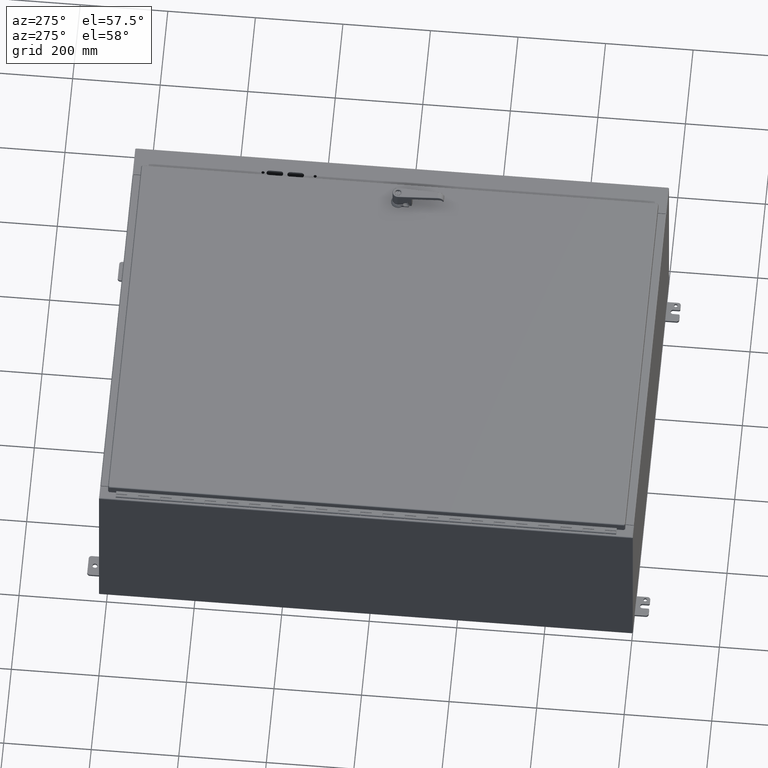
[diagram: clean part render]
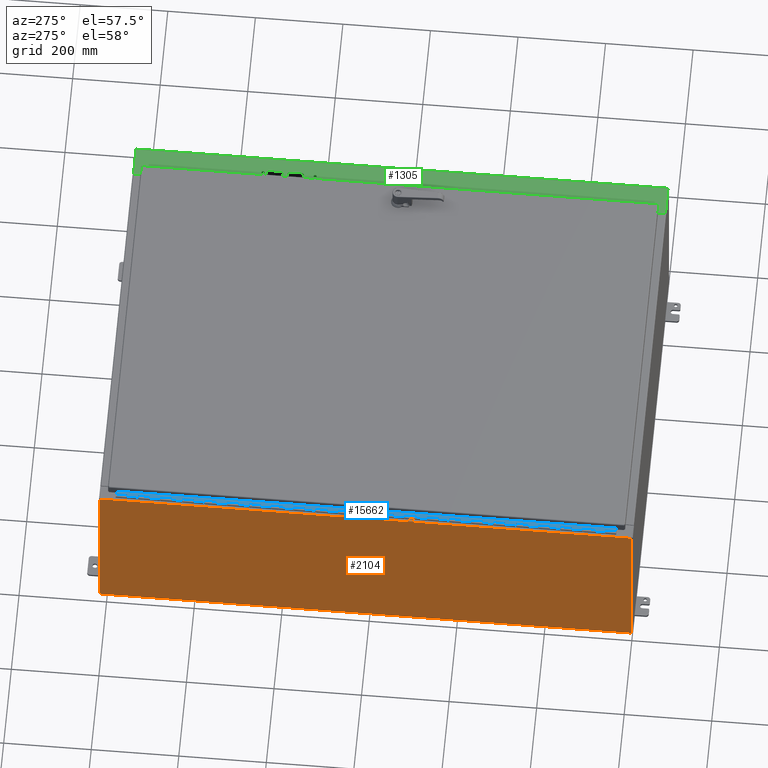
[diagram: same view with three faces highlighted in distinct colors, each labeled with its STEP entity id]
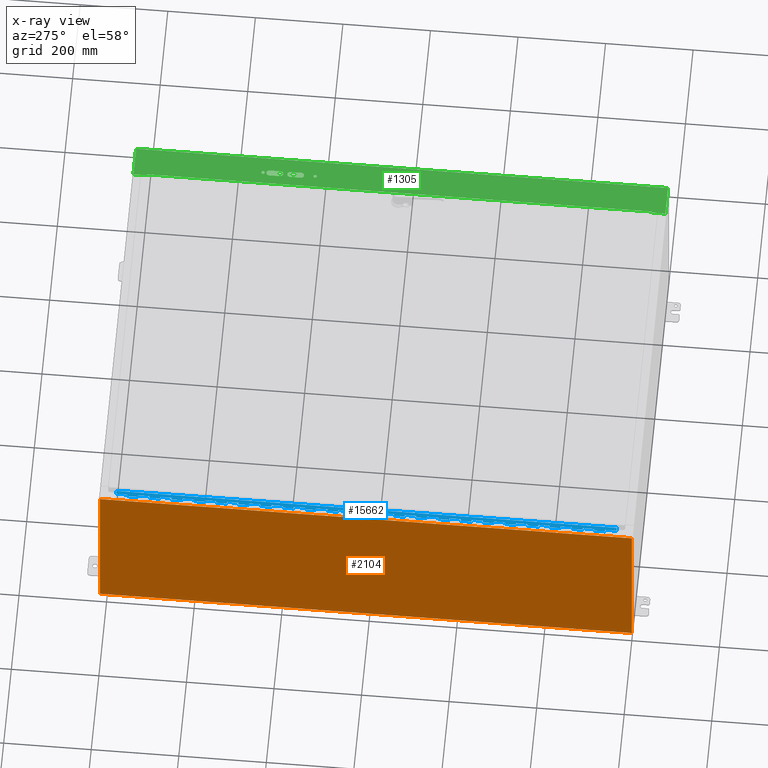
[diagram: x-ray of the same camera — body ghosted, the three highlighted faces saturated]
A machine part, auxiliary view with three faces highlighted in distinct colors.
The next image is the same camera in x-ray (body ghosted, the three faces saturated) — at least one of them is partly hidden behind the body in this view.
Their STEP definitions:

[orange] entity #2104 — the highlighted planar face has unit normal (1, 0, 0).
#1756=CARTESIAN_POINT('',(-1.463487E-014,47.852000000000004,0.10525));
#1757=VERTEX_POINT('',#1756);
#1765=CARTESIAN_POINT('',(-1.207477E-014,47.852000000000004,15.89475));
#1766=VERTEX_POINT('',#1765);
#1767=CARTESIAN_POINT('',(-1.463487E-014,47.852000000000004,0.10525));
#1768=DIRECTION('',(0.0,0.0,1.0));
#1769=VECTOR('',#1768,15.789499999999999);
#1770=LINE('',#1767,#1769);
#1771=EDGE_CURVE('',#1757,#1766,#1770,.T.);
#1930=CARTESIAN_POINT('',(2.567937E-015,1.682139E-014,15.894749999999982));
#1931=VERTEX_POINT('',#1930);
#1939=CARTESIAN_POINT('',(6.004373E-018,-3.068527E-017,0.10525));
#1940=VERTEX_POINT('',#1939);
#1941=CARTESIAN_POINT('',(3.511978E-015,-4.864825E-015,15.894749999999982));
#1942=DIRECTION('',(0.0,0.0,-1.0));
#1943=VECTOR('',#1942,15.789499999999983);
#1944=LINE('',#1941,#1943);
#1945=EDGE_CURVE('',#1931,#1940,#1944,.T.);
#2078=CARTESIAN_POINT('',(2.557311E-015,1.598721E-014,15.894749999999986));
#2079=DIRECTION('',(0.0,1.0,0.0));
#2080=VECTOR('',#2079,47.85199999999999);
#2081=LINE('',#2078,#2080);
#2082=EDGE_CURVE('',#1931,#1766,#2081,.T.);
#2088=CARTESIAN_POINT('',(-6.039665E-015,23.925999999999998,8.002508743193616));
#2089=DIRECTION('',(1.0,0.0,0.0));
#2090=DIRECTION('',(0.0,0.0,-1.0));
#2091=AXIS2_PLACEMENT_3D('',#2088,#2089,#2090);
#2092=PLANE('',#2091);
#2093=ORIENTED_EDGE('',*,*,#2082,.T.);
#2094=ORIENTED_EDGE('',*,*,#1771,.F.);
#2095=CARTESIAN_POINT('',(-1.463706E-014,47.852000000000004,0.105249999999999));
#2096=DIRECTION('',(0.0,-1.0,0.0));
#2097=VECTOR('',#2096,47.852000000000004);
#2098=LINE('',#2095,#2097);
#2099=EDGE_CURVE('',#1757,#1940,#2098,.T.);
#2100=ORIENTED_EDGE('',*,*,#2099,.T.);
#2101=ORIENTED_EDGE('',*,*,#1945,.F.);
#2102=EDGE_LOOP('',(#2093,#2094,#2100,#2101));
#2103=FACE_OUTER_BOUND('',#2102,.T.);
#2104=ADVANCED_FACE('',(#2103),#2092,.F.);

[blue] entity #15662 — the highlighted planar face has unit normal (0.0872, -0, 0.9962).
#11705=CARTESIAN_POINT('',(0.0,-0.125,0.999999999999996));
#11706=VERTEX_POINT('',#11705);
#11716=CARTESIAN_POINT('',(-0.18,-0.125,0.999999999999996));
#11717=VERTEX_POINT('',#11716);
#11718=CARTESIAN_POINT('',(-0.18,-0.125,0.999999999999991));
#11719=DIRECTION('',(1.0,0.0,0.0));
#11720=VECTOR('',#11719,0.18);
#11721=LINE('',#11718,#11720);
#11722=EDGE_CURVE('',#11717,#11706,#11721,.T.);
#11782=CARTESIAN_POINT('',(-0.18,-0.125,0.0));
#11783=VERTEX_POINT('',#11782);
#11797=CARTESIAN_POINT('',(-0.18,-0.125,0.0));
#11798=DIRECTION('',(0.0,0.0,1.0));
#11799=VECTOR('',#11798,0.999999999999996);
#11800=LINE('',#11797,#11799);
#11801=EDGE_CURVE('',#11783,#11717,#11800,.T.);
#11811=CARTESIAN_POINT('',(0.0,-0.125,2.999999999999996));
#11812=VERTEX_POINT('',#11811);
#11822=CARTESIAN_POINT('',(-0.18,-0.125,2.999999999999996));
#11823=VERTEX_POINT('',#11822);
#11824=CARTESIAN_POINT('',(-0.18,-0.125,2.99999999999999));
#11825=DIRECTION('',(1.0,0.0,0.0));
#11826=VECTOR('',#11825,0.18);
#11827=LINE('',#11824,#11826);
#11828=EDGE_CURVE('',#11823,#11812,#11827,.T.);
#11895=CARTESIAN_POINT('',(-0.18,-0.125,1.979999999999989));
#11896=VERTEX_POINT('',#11895);
#11897=CARTESIAN_POINT('',(-0.18,-0.125,1.979999999999989));
#11898=DIRECTION('',(0.0,0.0,1.0));
#11899=VECTOR('',#11898,1.020000000000006);
#11900=LINE('',#11897,#11899);
#11901=EDGE_CURVE('',#11896,#11823,#11900,.T.);
#11919=CARTESIAN_POINT('',(0.0,-0.125,1.979999999999995));
#11920=VERTEX_POINT('',#11919);
#11969=CARTESIAN_POINT('',(0.0,-0.125,1.979999999999989));
#11970=DIRECTION('',(-1.0,0.0,0.0));
#11971=VECTOR('',#11970,0.18);
#11972=LINE('',#11969,#11971);
#11973=EDGE_CURVE('',#11920,#11896,#11972,.T.);
#11983=CARTESIAN_POINT('',(0.0,-0.125,5.000000000000001));
#11984=VERTEX_POINT('',#11983);
#11994=CARTESIAN_POINT('',(-0.18,-0.125,5.000000000000001));
#11995=VERTEX_POINT('',#11994);
#11996=CARTESIAN_POINT('',(-0.18,-0.125,4.999999999999995));
#11997=DIRECTION('',(1.0,0.0,0.0));
#11998=VECTOR('',#11997,0.18);
#11999=LINE('',#11996,#11998);
#12000=EDGE_CURVE('',#11995,#11984,#11999,.T.);
#12067=CARTESIAN_POINT('',(-0.18,-0.125,3.979999999999995));
#12068=VERTEX_POINT('',#12067);
#12069=CARTESIAN_POINT('',(-0.18,-0.125,3.979999999999994));
#12070=DIRECTION('',(0.0,0.0,1.0));
#12071=VECTOR('',#12070,1.020000000000007);
#12072=LINE('',#12069,#12071);
#12073=EDGE_CURVE('',#12068,#11995,#12072,.T.);
#12091=CARTESIAN_POINT('',(0.0,-0.125,3.98));
#12092=VERTEX_POINT('',#12091);
#12141=CARTESIAN_POINT('',(0.0,-0.125,3.979999999999995));
#12142=DIRECTION('',(-1.0,0.0,0.0));
#12143=VECTOR('',#12142,0.18);
#12144=LINE('',#12141,#12143);
#12145=EDGE_CURVE('',#12092,#12068,#12144,.T.);
#12155=CARTESIAN_POINT('',(0.0,-0.125,7.000000000000001));
#12156=VERTEX_POINT('',#12155);
#12166=CARTESIAN_POINT('',(-0.18,-0.125,7.000000000000001));
#12167=VERTEX_POINT('',#12166);
#12168=CARTESIAN_POINT('',(-0.18,-0.125,6.999999999999996));
#12169=DIRECTION('',(1.0,0.0,0.0));
#12170=VECTOR('',#12169,0.18);
#12171=LINE('',#12168,#12170);
#12172=EDGE_CURVE('',#12167,#12156,#12171,.T.);
#12239=CARTESIAN_POINT('',(-0.18,-0.125,5.979999999999994));
#12240=VERTEX_POINT('',#12239);
#12241=CARTESIAN_POINT('',(-0.18,-0.125,5.979999999999993));
#12242=DIRECTION('',(0.0,0.0,1.0));
#12243=VECTOR('',#12242,1.020000000000008);
#12244=LINE('',#12241,#12243);
#12245=EDGE_CURVE('',#12240,#12167,#12244,.T.);
#12263=CARTESIAN_POINT('',(0.0,-0.125,5.98));
#12264=VERTEX_POINT('',#12263);
#12313=CARTESIAN_POINT('',(0.0,-0.125,5.979999999999994));
#12314=DIRECTION('',(-1.0,0.0,0.0));
#12315=VECTOR('',#12314,0.18);
#12316=LINE('',#12313,#12315);
#12317=EDGE_CURVE('',#12264,#12240,#12316,.T.);
#12327=CARTESIAN_POINT('',(0.0,-0.125,9.0));
#12328=VERTEX_POINT('',#12327);
#12338=CARTESIAN_POINT('',(-0.18,-0.125,9.0));
#12339=VERTEX_POINT('',#12338);
#12340=CARTESIAN_POINT('',(-0.18,-0.125,8.999999999999995));
#12341=DIRECTION('',(1.0,0.0,0.0));
#12342=VECTOR('',#12341,0.18);
#12343=LINE('',#12340,#12342);
#12344=EDGE_CURVE('',#12339,#12328,#12343,.T.);
#12411=CARTESIAN_POINT('',(-0.18,-0.125,7.979999999999994));
#12412=VERTEX_POINT('',#12411);
#12413=CARTESIAN_POINT('',(-0.18,-0.125,7.979999999999993));
#12414=DIRECTION('',(0.0,0.0,1.0));
#12415=VECTOR('',#12414,1.020000000000007);
#12416=LINE('',#12413,#12415);
#12417=EDGE_CURVE('',#12412,#12339,#12416,.T.);
#12435=CARTESIAN_POINT('',(0.0,-0.125,7.98));
#12436=VERTEX_POINT('',#12435);
#12485=CARTESIAN_POINT('',(0.0,-0.125,7.979999999999994));
#12486=DIRECTION('',(-1.0,0.0,0.0));
#12487=VECTOR('',#12486,0.18);
#12488=LINE('',#12485,#12487);
#12489=EDGE_CURVE('',#12436,#12412,#12488,.T.);
#12499=CARTESIAN_POINT('',(0.0,-0.125,10.999999999999998));
#12500=VERTEX_POINT('',#12499);
#12510=CARTESIAN_POINT('',(-0.18,-0.125,11.0));
#12511=VERTEX_POINT('',#12510);
#12512=CARTESIAN_POINT('',(-0.18,-0.125,10.999999999999995));
#12513=DIRECTION('',(1.0,0.0,0.0));
#12514=VECTOR('',#12513,0.18);
#12515=LINE('',#12512,#12514);
#12516=EDGE_CURVE('',#12511,#12500,#12515,.T.);
#12583=CARTESIAN_POINT('',(-0.18,-0.125,9.979999999999993));
#12584=VERTEX_POINT('',#12583);
#12585=CARTESIAN_POINT('',(-0.18,-0.125,9.979999999999993));
#12586=DIRECTION('',(0.0,0.0,1.0));
#12587=VECTOR('',#12586,1.020000000000007);
#12588=LINE('',#12585,#12587);
#12589=EDGE_CURVE('',#12584,#12511,#12588,.T.);
#12607=CARTESIAN_POINT('',(0.0,-0.125,9.979999999999999));
#12608=VERTEX_POINT('',#12607);
#12657=CARTESIAN_POINT('',(0.0,-0.125,9.979999999999993));
#12658=DIRECTION('',(-1.0,0.0,0.0));
#12659=VECTOR('',#12658,0.18);
#12660=LINE('',#12657,#12659);
#12661=EDGE_CURVE('',#12608,#12584,#12660,.T.);
#12671=CARTESIAN_POINT('',(0.0,-0.125,13.0));
#12672=VERTEX_POINT('',#12671);
#12682=CARTESIAN_POINT('',(-0.18,-0.125,13.0));
#12683=VERTEX_POINT('',#12682);
#12684=CARTESIAN_POINT('',(-0.18,-0.125,12.999999999999993));
#12685=DIRECTION('',(1.0,0.0,0.0));
#12686=VECTOR('',#12685,0.18);
#12687=LINE('',#12684,#12686);
#12688=EDGE_CURVE('',#12683,#12672,#12687,.T.);
#12755=CARTESIAN_POINT('',(-0.18,-0.125,11.979999999999993));
#12756=VERTEX_POINT('',#12755);
#12757=CARTESIAN_POINT('',(-0.18,-0.125,11.979999999999993));
#12758=DIRECTION('',(0.0,0.0,1.0));
#12759=VECTOR('',#12758,1.020000000000007);
#12760=LINE('',#12757,#12759);
#12761=EDGE_CURVE('',#12756,#12683,#12760,.T.);
#12779=CARTESIAN_POINT('',(0.0,-0.125,11.979999999999999));
#12780=VERTEX_POINT('',#12779);
#12829=CARTESIAN_POINT('',(0.0,-0.125,11.979999999999993));
#12830=DIRECTION('',(-1.0,0.0,0.0));
#12831=VECTOR('',#12830,0.18);
#12832=LINE('',#12829,#12831);
#12833=EDGE_CURVE('',#12780,#12756,#12832,.T.);
#12843=CARTESIAN_POINT('',(0.0,-0.125,14.999999999999998));
#12844=VERTEX_POINT('',#12843);
#12854=CARTESIAN_POINT('',(-0.18,-0.125,14.999999999999998));
#12855=VERTEX_POINT('',#12854);
#12856=CARTESIAN_POINT('',(-0.18,-0.125,14.999999999999993));
#12857=DIRECTION('',(1.0,0.0,0.0));
#12858=VECTOR('',#12857,0.18);
#12859=LINE('',#12856,#12858);
#12860=EDGE_CURVE('',#12855,#12844,#12859,.T.);
#12927=CARTESIAN_POINT('',(-0.18,-0.125,13.979999999999992));
#12928=VERTEX_POINT('',#12927);
#12929=CARTESIAN_POINT('',(-0.18,-0.125,13.979999999999993));
#12930=DIRECTION('',(0.0,0.0,1.0));
#12931=VECTOR('',#12930,1.020000000000005);
#12932=LINE('',#12929,#12931);
#12933=EDGE_CURVE('',#12928,#12855,#12932,.T.);
#12951=CARTESIAN_POINT('',(0.0,-0.125,13.979999999999999));
#12952=VERTEX_POINT('',#12951);
#13001=CARTESIAN_POINT('',(0.0,-0.125,13.979999999999992));
#13002=DIRECTION('',(-1.0,0.0,0.0));
#13003=VECTOR('',#13002,0.18);
#13004=LINE('',#13001,#13003);
#13005=EDGE_CURVE('',#12952,#12928,#13004,.T.);
#13015=CARTESIAN_POINT('',(0.0,-0.125,16.999999999999996));
#13016=VERTEX_POINT('',#13015);
#13026=CARTESIAN_POINT('',(-0.18,-0.125,16.999999999999996));
#13027=VERTEX_POINT('',#13026);
#13028=CARTESIAN_POINT('',(-0.18,-0.125,16.999999999999993));
#13029=DIRECTION('',(1.0,0.0,0.0));
#13030=VECTOR('',#13029,0.18);
#13031=LINE('',#13028,#13030);
#13032=EDGE_CURVE('',#13027,#13016,#13031,.T.);
#13099=CARTESIAN_POINT('',(-0.18,-0.125,15.979999999999992));
#13100=VERTEX_POINT('',#13099);
#13101=CARTESIAN_POINT('',(-0.18,-0.125,15.97999999999999));
#13102=DIRECTION('',(0.0,0.0,1.0));
#13103=VECTOR('',#13102,1.020000000000007);
#13104=LINE('',#13101,#13103);
#13105=EDGE_CURVE('',#13100,#13027,#13104,.T.);
#13123=CARTESIAN_POINT('',(0.0,-0.125,15.979999999999997));
#13124=VERTEX_POINT('',#13123);
#13173=CARTESIAN_POINT('',(0.0,-0.125,15.979999999999992));
#13174=DIRECTION('',(-1.0,0.0,0.0));
#13175=VECTOR('',#13174,0.18);
#13176=LINE('',#13173,#13175);
#13177=EDGE_CURVE('',#13124,#13100,#13176,.T.);
#13187=CARTESIAN_POINT('',(0.0,-0.125,18.999999999999996));
#13188=VERTEX_POINT('',#13187);
#13198=CARTESIAN_POINT('',(-0.18,-0.125,18.999999999999996));
#13199=VERTEX_POINT('',#13198);
#13200=CARTESIAN_POINT('',(-0.18,-0.125,18.999999999999993));
#13201=DIRECTION('',(1.0,0.0,0.0));
#13202=VECTOR('',#13201,0.18);
#13203=LINE('',#13200,#13202);
#13204=EDGE_CURVE('',#13199,#13188,#13203,.T.);
#13271=CARTESIAN_POINT('',(-0.18,-0.125,17.97999999999999));
#13272=VERTEX_POINT('',#13271);
#13273=CARTESIAN_POINT('',(-0.18,-0.125,17.97999999999999));
#13274=DIRECTION('',(0.0,0.0,1.0));
#13275=VECTOR('',#13274,1.020000000000007);
#13276=LINE('',#13273,#13275);
#13277=EDGE_CURVE('',#13272,#13199,#13276,.T.);
#13295=CARTESIAN_POINT('',(0.0,-0.125,17.98));
#13296=VERTEX_POINT('',#13295);
#13345=CARTESIAN_POINT('',(0.0,-0.125,17.97999999999999));
#13346=DIRECTION('',(-1.0,0.0,0.0));
#13347=VECTOR('',#13346,0.18);
#13348=LINE('',#13345,#13347);
#13349=EDGE_CURVE('',#13296,#13272,#13348,.T.);
#13359=CARTESIAN_POINT('',(0.0,-0.125,21.000000000000004));
#13360=VERTEX_POINT('',#13359);
#13370=CARTESIAN_POINT('',(-0.18,-0.125,21.0));
#13371=VERTEX_POINT('',#13370);
#13372=CARTESIAN_POINT('',(-0.18,-0.125,20.999999999999993));
#13373=DIRECTION('',(1.0,0.0,0.0));
#13374=VECTOR('',#13373,0.18);
#13375=LINE('',#13372,#13374);
#13376=EDGE_CURVE('',#13371,#13360,#13375,.T.);
#13443=CARTESIAN_POINT('',(-0.18,-0.125,19.979999999999993));
#13444=VERTEX_POINT('',#13443);
#13445=CARTESIAN_POINT('',(-0.18,-0.125,19.979999999999993));
#13446=DIRECTION('',(0.0,0.0,1.0));
#13447=VECTOR('',#13446,1.020000000000007);
#13448=LINE('',#13445,#13447);
#13449=EDGE_CURVE('',#13444,#13371,#13448,.T.);
#13467=CARTESIAN_POINT('',(0.0,-0.125,19.98));
#13468=VERTEX_POINT('',#13467);
#13517=CARTESIAN_POINT('',(0.0,-0.125,19.979999999999993));
#13518=DIRECTION('',(-1.0,0.0,0.0));
#13519=VECTOR('',#13518,0.18);
#13520=LINE('',#13517,#13519);
#13521=EDGE_CURVE('',#13468,#13444,#13520,.T.);
#13531=CARTESIAN_POINT('',(0.0,-0.125,22.999999999999996));
#13532=VERTEX_POINT('',#13531);
#13542=CARTESIAN_POINT('',(-0.18,-0.125,23.0));
#13543=VERTEX_POINT('',#13542);
#13544=CARTESIAN_POINT('',(-0.18,-0.125,22.999999999999993));
#13545=DIRECTION('',(1.0,0.0,0.0));
#13546=VECTOR('',#13545,0.18);
#13547=LINE('',#13544,#13546);
#13548=EDGE_CURVE('',#13543,#13532,#13547,.T.);
#13615=CARTESIAN_POINT('',(-0.18,-0.125,21.979999999999993));
#13616=VERTEX_POINT('',#13615);
#13617=CARTESIAN_POINT('',(-0.18,-0.125,21.979999999999993));
#13618=DIRECTION('',(0.0,0.0,1.0));
#13619=VECTOR('',#13618,1.020000000000007);
#13620=LINE('',#13617,#13619);
#13621=EDGE_CURVE('',#13616,#13543,#13620,.T.);
#13639=CARTESIAN_POINT('',(0.0,-0.125,21.979999999999997));
#13640=VERTEX_POINT('',#13639);
#13689=CARTESIAN_POINT('',(-6.162976E-033,-0.125,21.979999999999993));
#13690=DIRECTION('',(-1.0,0.0,0.0));
#13691=VECTOR('',#13690,0.18);
#13692=LINE('',#13689,#13691);
#13693=EDGE_CURVE('',#13640,#13616,#13692,.T.);
#13703=CARTESIAN_POINT('',(0.0,-0.125,25.0));
#13704=VERTEX_POINT('',#13703);
#13714=CARTESIAN_POINT('',(-0.18,-0.125,25.0));
#13715=VERTEX_POINT('',#13714);
#13716=CARTESIAN_POINT('',(-0.18,-0.125,24.999999999999996));
#13717=DIRECTION('',(1.0,0.0,0.0));
#13718=VECTOR('',#13717,0.18);
#13719=LINE('',#13716,#13718);
#13720=EDGE_CURVE('',#13715,#13704,#13719,.T.);
#13787=CARTESIAN_POINT('',(-0.18,-0.125,23.979999999999997));
#13788=VERTEX_POINT('',#13787);
#13789=CARTESIAN_POINT('',(-0.18,-0.125,23.979999999999997));
#13790=DIRECTION('',(0.0,0.0,1.0));
#13791=VECTOR('',#13790,1.020000000000003);
#13792=LINE('',#13789,#13791);
#13793=EDGE_CURVE('',#13788,#13715,#13792,.T.);
#13811=CARTESIAN_POINT('',(0.0,-0.125,23.98));
#13812=VERTEX_POINT('',#13811);
#13861=CARTESIAN_POINT('',(-6.162976E-033,-0.125,23.979999999999997));
#13862=DIRECTION('',(-1.0,0.0,0.0));
#13863=VECTOR('',#13862,0.18);
#13864=LINE('',#13861,#13863);
#13865=EDGE_CURVE('',#13812,#13788,#13864,.T.);
#13875=CARTESIAN_POINT('',(0.0,-0.125,27.0));
#13876=VERTEX_POINT('',#13875);
#13886=CARTESIAN_POINT('',(-0.18,-0.125,27.0));
#13887=VERTEX_POINT('',#13886);
#13888=CARTESIAN_POINT('',(-0.18,-0.125,26.999999999999996));
#13889=DIRECTION('',(1.0,0.0,0.0));
#13890=VECTOR('',#13889,0.18);
#13891=LINE('',#13888,#13890);
#13892=EDGE_CURVE('',#13887,#13876,#13891,.T.);
#13959=CARTESIAN_POINT('',(-0.18,-0.125,25.979999999999993));
#13960=VERTEX_POINT('',#13959);
#13961=CARTESIAN_POINT('',(-0.18,-0.125,25.979999999999993));
#13962=DIRECTION('',(0.0,0.0,1.0));
#13963=VECTOR('',#13962,1.020000000000007);
#13964=LINE('',#13961,#13963);
#13965=EDGE_CURVE('',#13960,#13887,#13964,.T.);
#13983=CARTESIAN_POINT('',(0.0,-0.125,25.98));
#13984=VERTEX_POINT('',#13983);
#14033=CARTESIAN_POINT('',(-3.081488E-033,-0.125,25.979999999999993));
#14034=DIRECTION('',(-1.0,0.0,0.0));
#14035=VECTOR('',#14034,0.18);
#14036=LINE('',#14033,#14035);
#14037=EDGE_CURVE('',#13984,#13960,#14036,.T.);
#14047=CARTESIAN_POINT('',(0.0,-0.125,29.0));
#14048=VERTEX_POINT('',#14047);
#14058=CARTESIAN_POINT('',(-0.18,-0.125,29.0));
#14059=VERTEX_POINT('',#14058);
#14060=CARTESIAN_POINT('',(-0.18,-0.125,28.999999999999996));
#14061=DIRECTION('',(1.0,0.0,0.0));
#14062=VECTOR('',#14061,0.18);
#14063=LINE('',#14060,#14062);
#14064=EDGE_CURVE('',#14059,#14048,#14063,.T.);
#14131=CARTESIAN_POINT('',(-0.18,-0.125,27.979999999999993));
#14132=VERTEX_POINT('',#14131);
#14133=CARTESIAN_POINT('',(-0.18,-0.125,27.979999999999993));
#14134=DIRECTION('',(0.0,0.0,1.0));
#14135=VECTOR('',#14134,1.020000000000007);
#14136=LINE('',#14133,#14135);
#14137=EDGE_CURVE('',#14132,#14059,#14136,.T.);
#14155=CARTESIAN_POINT('',(0.0,-0.125,27.98));
#14156=VERTEX_POINT('',#14155);
#14205=CARTESIAN_POINT('',(-3.081488E-033,-0.125,27.979999999999993));
#14206=DIRECTION('',(-1.0,0.0,0.0));
#14207=VECTOR('',#14206,0.18);
#14208=LINE('',#14205,#14207);
#14209=EDGE_CURVE('',#14156,#14132,#14208,.T.);
#14219=CARTESIAN_POINT('',(0.0,-0.125,31.0));
#14220=VERTEX_POINT('',#14219);
#14230=CARTESIAN_POINT('',(-0.18,-0.125,31.0));
#14231=VERTEX_POINT('',#14230);
#14232=CARTESIAN_POINT('',(-0.18,-0.125,30.999999999999993));
#14233=DIRECTION('',(1.0,0.0,0.0));
#14234=VECTOR('',#14233,0.18);
#14235=LINE('',#14232,#14234);
#14236=EDGE_CURVE('',#14231,#14220,#14235,.T.);
#14303=CARTESIAN_POINT('',(-0.18,-0.125,29.979999999999993));
#14304=VERTEX_POINT('',#14303);
#14305=CARTESIAN_POINT('',(-0.18,-0.125,29.979999999999993));
#14306=DIRECTION('',(0.0,0.0,1.0));
#14307=VECTOR('',#14306,1.020000000000007);
#14308=LINE('',#14305,#14307);
#14309=EDGE_CURVE('',#14304,#14231,#14308,.T.);
#14327=CARTESIAN_POINT('',(0.0,-0.125,29.98));
#14328=VERTEX_POINT('',#14327);
#14377=CARTESIAN_POINT('',(-3.081488E-033,-0.125,29.979999999999993));
#14378=DIRECTION('',(-1.0,0.0,0.0));
#14379=VECTOR('',#14378,0.18);
#14380=LINE('',#14377,#14379);
#14381=EDGE_CURVE('',#14328,#14304,#14380,.T.);
#14391=CARTESIAN_POINT('',(0.0,-0.125,33.000000000000007));
#14392=VERTEX_POINT('',#14391);
#14402=CARTESIAN_POINT('',(-0.18,-0.125,33.000000000000007));
#14403=VERTEX_POINT('',#14402);
#14404=CARTESIAN_POINT('',(-0.18,-0.125,32.999999999999993));
#14405=DIRECTION('',(1.0,0.0,0.0));
#14406=VECTOR('',#14405,0.18);
#14407=LINE('',#14404,#14406);
#14408=EDGE_CURVE('',#14403,#14392,#14407,.T.);
#14475=CARTESIAN_POINT('',(-0.18,-0.125,31.979999999999993));
#14476=VERTEX_POINT('',#14475);
#14477=CARTESIAN_POINT('',(-0.18,-0.125,31.979999999999993));
#14478=DIRECTION('',(0.0,0.0,1.0));
#14479=VECTOR('',#14478,1.020000000000014);
#14480=LINE('',#14477,#14479);
#14481=EDGE_CURVE('',#14476,#14403,#14480,.T.);
#14499=CARTESIAN_POINT('',(0.0,-0.125,31.980000000000004));
#14500=VERTEX_POINT('',#14499);
#14549=CARTESIAN_POINT('',(-6.162976E-033,-0.125,31.979999999999993));
#14550=DIRECTION('',(-1.0,0.0,0.0));
#14551=VECTOR('',#14550,0.18);
#14552=LINE('',#14549,#14551);
#14553=EDGE_CURVE('',#14500,#14476,#14552,.T.);
#14563=CARTESIAN_POINT('',(0.0,-0.125,35.0));
#14564=VERTEX_POINT('',#14563);
#14574=CARTESIAN_POINT('',(-0.18,-0.125,35.0));
#14575=VERTEX_POINT('',#14574);
#14576=CARTESIAN_POINT('',(-0.18,-0.125,35.0));
#14577=DIRECTION('',(1.0,0.0,0.0));
#14578=VECTOR('',#14577,0.18);
#14579=LINE('',#14576,#14578);
#14580=EDGE_CURVE('',#14575,#14564,#14579,.T.);
#14647=CARTESIAN_POINT('',(-0.18,-0.125,33.979999999999997));
#14648=VERTEX_POINT('',#14647);
#14649=CARTESIAN_POINT('',(-0.18,-0.125,33.979999999999997));
#14650=DIRECTION('',(0.0,0.0,1.0));
#14651=VECTOR('',#14650,1.020000000000003);
#14652=LINE('',#14649,#14651);
#14653=EDGE_CURVE('',#14648,#14575,#14652,.T.);
#14671=CARTESIAN_POINT('',(0.0,-0.125,33.979999999999997));
#14672=VERTEX_POINT('',#14671);
#14721=CARTESIAN_POINT('',(-6.162976E-033,-0.125,33.979999999999997));
#14722=DIRECTION('',(-1.0,0.0,0.0));
#14723=VECTOR('',#14722,0.18);
#14724=LINE('',#14721,#14723);
#14725=EDGE_CURVE('',#14672,#14648,#14724,.T.);
#14735=CARTESIAN_POINT('',(0.0,-0.125,37.000000000000007));
#14736=VERTEX_POINT('',#14735);
#14746=CARTESIAN_POINT('',(-0.18,-0.125,37.000000000000007));
#14747=VERTEX_POINT('',#14746);
#14748=CARTESIAN_POINT('',(-0.18,-0.125,37.0));
#14749=DIRECTION('',(1.0,0.0,0.0));
#14750=VECTOR('',#14749,0.18);
#14751=LINE('',#14748,#14750);
#14752=EDGE_CURVE('',#14747,#14736,#14751,.T.);
#14819=CARTESIAN_POINT('',(-0.18,-0.125,35.979999999999997));
#14820=VERTEX_POINT('',#14819);
#14821=CARTESIAN_POINT('',(-0.18,-0.125,35.980000000000004));
#14822=DIRECTION('',(0.0,0.0,1.0));
#14823=VECTOR('',#14822,1.020000000000003);
#14824=LINE('',#14821,#14823);
#14825=EDGE_CURVE('',#14820,#14747,#14824,.T.);
#14843=CARTESIAN_POINT('',(0.0,-0.125,35.980000000000004));
#14844=VERTEX_POINT('',#14843);
#14893=CARTESIAN_POINT('',(-6.162976E-033,-0.125,35.979999999999997));
#14894=DIRECTION('',(-1.0,0.0,0.0));
#14895=VECTOR('',#14894,0.18);
#14896=LINE('',#14893,#14895);
#14897=EDGE_CURVE('',#14844,#14820,#14896,.T.);
#14907=CARTESIAN_POINT('',(0.0,-0.125,39.0));
#14908=VERTEX_POINT('',#14907);
#14918=CARTESIAN_POINT('',(-0.18,-0.125,39.0));
#14919=VERTEX_POINT('',#14918);
#14920=CARTESIAN_POINT('',(-0.18,-0.125,39.0));
#14921=DIRECTION('',(1.0,0.0,0.0));
#14922=VECTOR('',#14921,0.18);
#14923=LINE('',#14920,#14922);
#14924=EDGE_CURVE('',#14919,#14908,#14923,.T.);
#14991=CARTESIAN_POINT('',(-0.18,-0.125,37.979999999999997));
#14992=VERTEX_POINT('',#14991);
#14993=CARTESIAN_POINT('',(-0.18,-0.125,37.979999999999997));
#14994=DIRECTION('',(0.0,0.0,1.0));
#14995=VECTOR('',#14994,1.020000000000003);
#14996=LINE('',#14993,#14995);
#14997=EDGE_CURVE('',#14992,#14919,#14996,.T.);
#15015=CARTESIAN_POINT('',(0.0,-0.125,37.980000000000004));
#15016=VERTEX_POINT('',#15015);
#15065=CARTESIAN_POINT('',(-6.162976E-033,-0.125,37.979999999999997));
#15066=DIRECTION('',(-1.0,0.0,0.0));
#15067=VECTOR('',#15066,0.18);
#15068=LINE('',#15065,#15067);
#15069=EDGE_CURVE('',#15016,#14992,#15068,.T.);
#15079=CARTESIAN_POINT('',(0.0,-0.125,41.0));
#15080=VERTEX_POINT('',#15079);
#15090=CARTESIAN_POINT('',(-0.18,-0.125,41.0));
#15091=VERTEX_POINT('',#15090);
#15092=CARTESIAN_POINT('',(-0.18,-0.125,41.0));
#15093=DIRECTION('',(1.0,0.0,0.0));
#15094=VECTOR('',#15093,0.18);
#15095=LINE('',#15092,#15094);
#15096=EDGE_CURVE('',#15091,#15080,#15095,.T.);
#15163=CARTESIAN_POINT('',(-0.18,-0.125,39.979999999999997));
#15164=VERTEX_POINT('',#15163);
#15165=CARTESIAN_POINT('',(-0.18,-0.125,39.97999999999999));
#15166=DIRECTION('',(0.0,0.0,1.0));
#15167=VECTOR('',#15166,1.02000000000001);
#15168=LINE('',#15165,#15167);
#15169=EDGE_CURVE('',#15164,#15091,#15168,.T.);
#15187=CARTESIAN_POINT('',(0.0,-0.125,39.980000000000004));
#15188=VERTEX_POINT('',#15187);
#15237=CARTESIAN_POINT('',(-3.081488E-033,-0.125,39.979999999999997));
#15238=DIRECTION('',(-1.0,0.0,0.0));
#15239=VECTOR('',#15238,0.18);
#15240=LINE('',#15237,#15239);
#15241=EDGE_CURVE('',#15188,#15164,#15240,.T.);
#15251=CARTESIAN_POINT('',(0.0,-0.125,43.0));
#15252=VERTEX_POINT('',#15251);
#15262=CARTESIAN_POINT('',(-0.18,-0.125,43.0));
#15263=VERTEX_POINT('',#15262);
#15264=CARTESIAN_POINT('',(-0.18,-0.125,42.999999999999993));
#15265=DIRECTION('',(1.0,0.0,0.0));
#15266=VECTOR('',#15265,0.18);
#15267=LINE('',#15264,#15266);
#15268=EDGE_CURVE('',#15263,#15252,#15267,.T.);
#15335=CARTESIAN_POINT('',(-0.18,-0.125,41.979999999999997));
#15336=VERTEX_POINT('',#15335);
#15337=CARTESIAN_POINT('',(-0.18,-0.125,41.97999999999999));
#15338=DIRECTION('',(0.0,0.0,1.0));
#15339=VECTOR('',#15338,1.02000000000001);
#15340=LINE('',#15337,#15339);
#15341=EDGE_CURVE('',#15336,#15263,#15340,.T.);
#15359=CARTESIAN_POINT('',(0.0,-0.125,41.980000000000004));
#15360=VERTEX_POINT('',#15359);
#15409=CARTESIAN_POINT('',(-6.162976E-033,-0.125,41.979999999999997));
#15410=DIRECTION('',(-1.0,0.0,0.0));
#15411=VECTOR('',#15410,0.18);
#15412=LINE('',#15409,#15411);
#15413=EDGE_CURVE('',#15360,#15336,#15412,.T.);
#15418=CARTESIAN_POINT('',(1.530808E-017,-0.125,0.0));
#15419=DIRECTION('',(0.0,-1.0,0.0));
#15420=DIRECTION('',(0.0,0.0,-1.0));
#15421=AXIS2_PLACEMENT_3D('',#15418,#15419,#15420);
#15422=PLANE('',#15421);
#15423=ORIENTED_EDGE('',*,*,#11801,.T.);
#15424=ORIENTED_EDGE('',*,*,#11722,.T.);
#15425=CARTESIAN_POINT('',(1.530808E-017,-0.125,0.999999999999996));
#15426=DIRECTION('',(0.0,0.0,1.0));
#15427=VECTOR('',#15426,0.979999999999999);
#15428=LINE('',#15425,#15427);
#15429=EDGE_CURVE('',#11706,#11920,#15428,.T.);
#15430=ORIENTED_EDGE('',*,*,#15429,.T.);
#15431=ORIENTED_EDGE('',*,*,#11973,.T.);
#15432=ORIENTED_EDGE('',*,*,#11901,.T.);
#15433=ORIENTED_EDGE('',*,*,#11828,.T.);
#15434=CARTESIAN_POINT('',(1.530808E-017,-0.125,2.999999999999996));
#15435=DIRECTION('',(0.0,0.0,1.0));
#15436=VECTOR('',#15435,0.980000000000004);
#15437=LINE('',#15434,#15436);
#15438=EDGE_CURVE('',#11812,#12092,#15437,.T.);
#15439=ORIENTED_EDGE('',*,*,#15438,.T.);
#15440=ORIENTED_EDGE('',*,*,#12145,.T.);
#15441=ORIENTED_EDGE('',*,*,#12073,.T.);
#15442=ORIENTED_EDGE('',*,*,#12000,.T.);
#15443=CARTESIAN_POINT('',(1.530808E-017,-0.125,5.000000000000001));
#15444=DIRECTION('',(0.0,0.0,1.0));
#15445=VECTOR('',#15444,0.979999999999999);
#15446=LINE('',#15443,#15445);
#15447=EDGE_CURVE('',#11984,#12264,#15446,.T.);
#15448=ORIENTED_EDGE('',*,*,#15447,.T.);
#15449=ORIENTED_EDGE('',*,*,#12317,.T.);
#15450=ORIENTED_EDGE('',*,*,#12245,.T.);
#15451=ORIENTED_EDGE('',*,*,#12172,.T.);
#15452=CARTESIAN_POINT('',(1.530808E-017,-0.125,7.000000000000001));
#15453=DIRECTION('',(0.0,0.0,1.0));
#15454=VECTOR('',#15453,0.979999999999999);
#15455=LINE('',#15452,#15454);
#15456=EDGE_CURVE('',#12156,#12436,#15455,.T.);
#15457=ORIENTED_EDGE('',*,*,#15456,.T.);
#15458=ORIENTED_EDGE('',*,*,#12489,.T.);
#15459=ORIENTED_EDGE('',*,*,#12417,.T.);
#15460=ORIENTED_EDGE('',*,*,#12344,.T.);
#15461=CARTESIAN_POINT('',(1.530808E-017,-0.125,9.0));
#15462=DIRECTION('',(0.0,0.0,1.0));
#15463=VECTOR('',#15462,0.979999999999999);
#15464=LINE('',#15461,#15463);
#15465=EDGE_CURVE('',#12328,#12608,#15464,.T.);
#15466=ORIENTED_EDGE('',*,*,#15465,.T.);
#15467=ORIENTED_EDGE('',*,*,#12661,.T.);
#15468=ORIENTED_EDGE('',*,*,#12589,.T.);
#15469=ORIENTED_EDGE('',*,*,#12516,.T.);
#15470=CARTESIAN_POINT('',(1.530808E-017,-0.125,10.999999999999998));
#15471=DIRECTION('',(0.0,0.0,1.0));
#15472=VECTOR('',#15471,0.98);
#15473=LINE('',#15470,#15472);
#15474=EDGE_CURVE('',#12500,#12780,#15473,.T.);
#15475=ORIENTED_EDGE('',*,*,#15474,.T.);
#15476=ORIENTED_EDGE('',*,*,#12833,.T.);
#15477=ORIENTED_EDGE('',*,*,#12761,.T.);
#15478=ORIENTED_EDGE('',*,*,#12688,.T.);
#15479=CARTESIAN_POINT('',(1.530808E-017,-0.125,13.0));
#15480=DIRECTION('',(0.0,0.0,1.0));
#15481=VECTOR('',#15480,0.979999999999999);
#15482=LINE('',#15479,#15481);
#15483=EDGE_CURVE('',#12672,#12952,#15482,.T.);
#15484=ORIENTED_EDGE('',*,*,#15483,.T.);
#15485=ORIENTED_EDGE('',*,*,#13005,.T.);
#15486=ORIENTED_EDGE('',*,*,#12933,.T.);
#15487=ORIENTED_EDGE('',*,*,#12860,.T.);
#15488=CARTESIAN_POINT('',(1.530808E-017,-0.125,14.999999999999998));
#15489=DIRECTION('',(0.0,0.0,1.0));
#15490=VECTOR('',#15489,0.979999999999999);
#15491=LINE('',#15488,#15490);
#15492=EDGE_CURVE('',#12844,#13124,#15491,.T.);
#15493=ORIENTED_EDGE('',*,*,#15492,.T.);
#15494=ORIENTED_EDGE('',*,*,#13177,.T.);
#15495=ORIENTED_EDGE('',*,*,#13105,.T.);
#15496=ORIENTED_EDGE('',*,*,#13032,.T.);
#15497=CARTESIAN_POINT('',(1.530808E-017,-0.125,16.999999999999996));
#15498=DIRECTION('',(0.0,0.0,1.0));
#15499=VECTOR('',#15498,0.980000000000004);
#15500=LINE('',#15497,#15499);
#15501=EDGE_CURVE('',#13016,#13296,#15500,.T.);
#15502=ORIENTED_EDGE('',*,*,#15501,.T.);
#15503=ORIENTED_EDGE('',*,*,#13349,.T.);
#15504=ORIENTED_EDGE('',*,*,#13277,.T.);
#15505=ORIENTED_EDGE('',*,*,#13204,.T.);
#15506=CARTESIAN_POINT('',(1.530808E-017,-0.125,18.999999999999996));
#15507=DIRECTION('',(0.0,0.0,1.0));
#15508=VECTOR('',#15507,0.980000000000004);
#15509=LINE('',#15506,#15508);
#15510=EDGE_CURVE('',#13188,#13468,#15509,.T.);
#15511=ORIENTED_EDGE('',*,*,#15510,.T.);
#15512=ORIENTED_EDGE('',*,*,#13521,.T.);
#15513=ORIENTED_EDGE('',*,*,#13449,.T.);
#15514=ORIENTED_EDGE('',*,*,#13376,.T.);
#15515=CARTESIAN_POINT('',(1.530808E-017,-0.125,21.000000000000004));
#15516=DIRECTION('',(0.0,0.0,1.0));
#15517=VECTOR('',#15516,0.979999999999993);
#15518=LINE('',#15515,#15517);
#15519=EDGE_CURVE('',#13360,#13640,#15518,.T.);
#15520=ORIENTED_EDGE('',*,*,#15519,.T.);
#15521=ORIENTED_EDGE('',*,*,#13693,.T.);
#15522=ORIENTED_EDGE('',*,*,#13621,.T.);
#15523=ORIENTED_EDGE('',*,*,#13548,.T.);
#15524=CARTESIAN_POINT('',(1.530808E-017,-0.125,22.999999999999996));
#15525=DIRECTION('',(0.0,0.0,1.0));
#15526=VECTOR('',#15525,0.980000000000004);
#15527=LINE('',#15524,#15526);
#15528=EDGE_CURVE('',#13532,#13812,#15527,.T.);
#15529=ORIENTED_EDGE('',*,*,#15528,.T.);
#15530=ORIENTED_EDGE('',*,*,#13865,.T.);
#15531=ORIENTED_EDGE('',*,*,#13793,.T.);
#15532=ORIENTED_EDGE('',*,*,#13720,.T.);
#15533=CARTESIAN_POINT('',(1.530808E-017,-0.125,25.0));
#15534=DIRECTION('',(0.0,0.0,1.0));
#15535=VECTOR('',#15534,0.98);
#15536=LINE('',#15533,#15535);
#15537=EDGE_CURVE('',#13704,#13984,#15536,.T.);
#15538=ORIENTED_EDGE('',*,*,#15537,.T.);
#15539=ORIENTED_EDGE('',*,*,#14037,.T.);
#15540=ORIENTED_EDGE('',*,*,#13965,.T.);
#15541=ORIENTED_EDGE('',*,*,#13892,.T.);
#15542=CARTESIAN_POINT('',(1.530808E-017,-0.125,27.0));
#15543=DIRECTION('',(0.0,0.0,1.0));
#15544=VECTOR('',#15543,0.98);
#15545=LINE('',#15542,#15544);
#15546=EDGE_CURVE('',#13876,#14156,#15545,.T.);
#15547=ORIENTED_EDGE('',*,*,#15546,.T.);
#15548=ORIENTED_EDGE('',*,*,#14209,.T.);
#15549=ORIENTED_EDGE('',*,*,#14137,.T.);
#15550=ORIENTED_EDGE('',*,*,#14064,.T.);
#15551=CARTESIAN_POINT('',(1.530808E-017,-0.125,29.0));
#15552=DIRECTION('',(0.0,0.0,1.0));
#15553=VECTOR('',#15552,0.98);
#15554=LINE('',#15551,#15553);
#15555=EDGE_CURVE('',#14048,#14328,#15554,.T.);
#15556=ORIENTED_EDGE('',*,*,#15555,.T.);
#15557=ORIENTED_EDGE('',*,*,#14381,.T.);
#15558=ORIENTED_EDGE('',*,*,#14309,.T.);
#15559=ORIENTED_EDGE('',*,*,#14236,.T.);
#15560=CARTESIAN_POINT('',(1.530808E-017,-0.125,31.0));
#15561=DIRECTION('',(0.0,0.0,1.0));
#15562=VECTOR('',#15561,0.980000000000004);
#15563=LINE('',#15560,#15562);
#15564=EDGE_CURVE('',#14220,#14500,#15563,.T.);
#15565=ORIENTED_EDGE('',*,*,#15564,.T.);
#15566=ORIENTED_EDGE('',*,*,#14553,.T.);
#15567=ORIENTED_EDGE('',*,*,#14481,.T.);
#15568=ORIENTED_EDGE('',*,*,#14408,.T.);
#15569=CARTESIAN_POINT('',(1.530808E-017,-0.125,33.000000000000007));
#15570=DIRECTION('',(0.0,0.0,1.0));
#15571=VECTOR('',#15570,0.97999999999999);
#15572=LINE('',#15569,#15571);
#15573=EDGE_CURVE('',#14392,#14672,#15572,.T.);
#15574=ORIENTED_EDGE('',*,*,#15573,.T.);
#15575=ORIENTED_EDGE('',*,*,#14725,.T.);
#15576=ORIENTED_EDGE('',*,*,#14653,.T.);
#15577=ORIENTED_EDGE('',*,*,#14580,.T.);
#15578=CARTESIAN_POINT('',(1.530808E-017,-0.125,35.0));
#15579=DIRECTION('',(0.0,0.0,1.0));
#15580=VECTOR('',#15579,0.980000000000004);
#15581=LINE('',#15578,#15580);
#15582=EDGE_CURVE('',#14564,#14844,#15581,.T.);
#15583=ORIENTED_EDGE('',*,*,#15582,.T.);
#15584=ORIENTED_EDGE('',*,*,#14897,.T.);
#15585=ORIENTED_EDGE('',*,*,#14825,.T.);
#15586=ORIENTED_EDGE('',*,*,#14752,.T.);
#15587=CARTESIAN_POINT('',(1.530808E-017,-0.125,37.000000000000007));
#15588=DIRECTION('',(0.0,0.0,1.0));
#15589=VECTOR('',#15588,0.979999999999997);
#15590=LINE('',#15587,#15589);
#15591=EDGE_CURVE('',#14736,#15016,#15590,.T.);
#15592=ORIENTED_EDGE('',*,*,#15591,.T.);
#15593=ORIENTED_EDGE('',*,*,#15069,.T.);
#15594=ORIENTED_EDGE('',*,*,#14997,.T.);
#15595=ORIENTED_EDGE('',*,*,#14924,.T.);
#15596=CARTESIAN_POINT('',(1.530808E-017,-0.125,39.0));
#15597=DIRECTION('',(0.0,0.0,1.0));
#15598=VECTOR('',#15597,0.980000000000004);
#15599=LINE('',#15596,#15598);
#15600=EDGE_CURVE('',#14908,#15188,#15599,.T.);
#15601=ORIENTED_EDGE('',*,*,#15600,.T.);
#15602=ORIENTED_EDGE('',*,*,#15241,.T.);
#15603=ORIENTED_EDGE('',*,*,#15169,.T.);
#15604=ORIENTED_EDGE('',*,*,#15096,.T.);
#15605=CARTESIAN_POINT('',(1.530808E-017,-0.125,41.0));
#15606=DIRECTION('',(0.0,0.0,1.0));
#15607=VECTOR('',#15606,0.980000000000004);
#15608=LINE('',#15605,#15607);
#15609=EDGE_CURVE('',#15080,#15360,#15608,.T.);
#15610=ORIENTED_EDGE('',*,*,#15609,.T.);
#15611=ORIENTED_EDGE('',*,*,#15413,.T.);
#15612=ORIENTED_EDGE('',*,*,#15341,.T.);
#15613=ORIENTED_EDGE('',*,*,#15268,.T.);
#15614=CARTESIAN_POINT('',(0.0,-0.125,43.980000000000004));
#15615=VERTEX_POINT('',#15614);
#15616=CARTESIAN_POINT('',(1.530808E-017,-0.125,43.0));
#15617=DIRECTION('',(0.0,0.0,1.0));
#15618=VECTOR('',#15617,0.980000000000004);
#15619=LINE('',#15616,#15618);
#15620=EDGE_CURVE('',#15252,#15615,#15619,.T.);
#15621=ORIENTED_EDGE('',*,*,#15620,.T.);
#15622=CARTESIAN_POINT('',(-0.18,-0.125,43.979999999999997));
#15623=VERTEX_POINT('',#15622);
#15624=CARTESIAN_POINT('',(-3.081488E-033,-0.125,43.979999999999997));
#15625=DIRECTION('',(-1.0,0.0,0.0));
#15626=VECTOR('',#15625,0.18);
#15627=LINE('',#15624,#15626);
#15628=EDGE_CURVE('',#15615,#15623,#15627,.T.);
#15629=ORIENTED_EDGE('',*,*,#15628,.T.);
#15630=CARTESIAN_POINT('',(-0.18,-0.125,45.0));
#15631=VERTEX_POINT('',#15630);
#15632=CARTESIAN_POINT('',(-0.18,-0.125,43.97999999999999));
#15633=DIRECTION('',(0.0,0.0,1.0));
#15634=VECTOR('',#15633,1.02000000000001);
#15635=LINE('',#15632,#15634);
#15636=EDGE_CURVE('',#15623,#15631,#15635,.T.);
#15637=ORIENTED_EDGE('',*,*,#15636,.T.);
#15638=CARTESIAN_POINT('',(-0.511005076730884,-0.125,45.0));
#15639=VERTEX_POINT('',#15638);
#15640=CARTESIAN_POINT('',(-0.18,-0.125,45.0));
#15641=DIRECTION('',(-1.0,0.0,0.0));
#15642=VECTOR('',#15641,0.331005076730884);
#15643=LINE('',#15640,#15642);
#15644=EDGE_CURVE('',#15631,#15639,#15643,.T.);
#15645=ORIENTED_EDGE('',*,*,#15644,.T.);
#15646=CARTESIAN_POINT('',(-0.511005076730884,-0.125,0.0));
#15647=VERTEX_POINT('',#15646);
#15648=CARTESIAN_POINT('',(-0.511005076730884,-0.125,0.0));
#15649=DIRECTION('',(0.0,0.0,1.0));
#15650=VECTOR('',#15649,45.0);
#15651=LINE('',#15648,#15650);
#15652=EDGE_CURVE('',#15647,#15639,#15651,.T.);
#15653=ORIENTED_EDGE('',*,*,#15652,.F.);
#15654=CARTESIAN_POINT('',(-0.511005076730884,-0.125,0.0));
#15655=DIRECTION('',(1.0,0.0,0.0));
#15656=VECTOR('',#15655,0.331005076730884);
#15657=LINE('',#15654,#15656);
#15658=EDGE_CURVE('',#15647,#11783,#15657,.T.);
#15659=ORIENTED_EDGE('',*,*,#15658,.T.);
#15660=EDGE_LOOP('',(#15423,#15424,#15430,#15431,#15432,#15433,#15439,#15440,#15441,#15442,#15448,#15449,#15450,#15451,#15457,#15458,#15459,#15460,#15466,#15467,#15468,#15469,#15475,#15476,#15477,#15478,#15484,#15485,#15486,#15487,#15493,#15494,#15495,#15496,#15502,#15503,#15504,#15505,#15511,#15512,#15513,#15514,#15520,#15521,#15522,#15523,#15529,#15530,#15531,#15532,#15538,#15539,#15540,#15541,#15547,#15548,#15549,#15550,#15556,#15557,#15558,#15559,#15565,#15566,#15567,#15568,#15574,#15575,#15576,#15577,#15583,#15584,#15585,#15586,#15592,#15593,#15594,#15595,#15601,#15602,#15603,#15604,#15610,#15611,#15612,#15613,#15621,#15629,#15637,#15645,#15653,#15659));
#15661=FACE_OUTER_BOUND('',#15660,.T.);
#15662=ADVANCED_FACE('',(#15661),#15422,.T.);

[green] entity #1305 — the highlighted planar face has unit normal (0, 0, 1).
#135=CARTESIAN_POINT('',(35.53200000000097,32.863500000000016,16.000000000000117));
#136=VERTEX_POINT('',#135);
#143=CARTESIAN_POINT('',(36.03200000000097,32.863500000000009,16.000000000000082));
#144=VERTEX_POINT('',#143);
#145=CARTESIAN_POINT('',(35.78200000000097,32.863500000000009,16.000000000000128));
#146=DIRECTION('',(0.0,0.0,-1.0));
#147=DIRECTION('',(1.0,0.0,0.0));
#148=AXIS2_PLACEMENT_3D('',#145,#146,#147);
#149=CIRCLE('',#148,0.25);
#150=EDGE_CURVE('',#144,#136,#149,.T.);
#175=CARTESIAN_POINT('',(36.03200000000097,33.863500000000016,16.000000000000082));
#176=VERTEX_POINT('',#175);
#177=CARTESIAN_POINT('',(36.032000000000977,33.863500000000016,16.000000000000085));
#178=DIRECTION('',(0.0,-1.0,0.0));
#179=VECTOR('',#178,1.000000000000007);
#180=LINE('',#177,#179);
#181=EDGE_CURVE('',#176,#144,#180,.T.);
#207=CARTESIAN_POINT('',(35.53200000000097,33.863500000000016,16.000000000000114));
#208=VERTEX_POINT('',#207);
#209=CARTESIAN_POINT('',(35.78200000000097,33.863500000000016,16.000000000000128));
#210=DIRECTION('',(0.0,0.0,-1.0));
#211=DIRECTION('',(-1.0,0.0,0.0));
#212=AXIS2_PLACEMENT_3D('',#209,#210,#211);
#213=CIRCLE('',#212,0.25);
#214=EDGE_CURVE('',#208,#176,#213,.T.);
#237=CARTESIAN_POINT('',(35.532000000000963,32.863500000000016,16.000000000000114));
#238=DIRECTION('',(0.0,1.0,0.0));
#239=VECTOR('',#238,1.0);
#240=LINE('',#237,#239);
#241=EDGE_CURVE('',#136,#208,#240,.T.);
#262=CARTESIAN_POINT('',(36.032000000000963,34.738500000000016,16.000000000000082));
#263=VERTEX_POINT('',#262);
#270=CARTESIAN_POINT('',(36.032000000000963,35.738500000000023,16.000000000000082));
#271=VERTEX_POINT('',#270);
#272=CARTESIAN_POINT('',(36.032000000000963,35.738500000000023,16.000000000000085));
#273=DIRECTION('',(0.0,-1.0,0.0));
#274=VECTOR('',#273,1.000000000000007);
#275=LINE('',#272,#274);
#276=EDGE_CURVE('',#271,#263,#275,.T.);
#302=CARTESIAN_POINT('',(35.53200000000097,35.738500000000016,16.000000000000114));
#303=VERTEX_POINT('',#302);
#304=CARTESIAN_POINT('',(35.78200000000097,35.738500000000016,16.000000000000128));
#305=DIRECTION('',(0.0,0.0,-1.0));
#306=DIRECTION('',(1.0,0.0,0.0));
#307=AXIS2_PLACEMENT_3D('',#304,#305,#306);
#308=CIRCLE('',#307,0.25);
#309=EDGE_CURVE('',#303,#271,#308,.T.);
#334=CARTESIAN_POINT('',(35.53200000000097,34.738500000000016,16.000000000000114));
#335=VERTEX_POINT('',#334);
#336=CARTESIAN_POINT('',(35.532000000000963,34.738500000000016,16.000000000000114));
#337=DIRECTION('',(0.0,1.0,0.0));
#338=VECTOR('',#337,1.0);
#339=LINE('',#336,#338);
#340=EDGE_CURVE('',#335,#303,#339,.T.);
#364=CARTESIAN_POINT('',(35.78200000000097,34.738500000000016,16.000000000000128));
#365=DIRECTION('',(0.0,0.0,-1.0));
#366=DIRECTION('',(-1.0,0.0,0.0));
#367=AXIS2_PLACEMENT_3D('',#364,#365,#366);
#368=CIRCLE('',#367,0.25);
#369=EDGE_CURVE('',#263,#335,#368,.T.);
#391=CARTESIAN_POINT('',(35.922500000000973,31.613500000000009,16.000000000000092));
#392=VERTEX_POINT('',#391);
#393=CARTESIAN_POINT('',(35.78200000000097,31.613500000000009,16.000000000000128));
#394=DIRECTION('',(0.0,0.0,-1.0));
#395=DIRECTION('',(-1.0,0.0,0.0));
#396=AXIS2_PLACEMENT_3D('',#393,#394,#395);
#397=CIRCLE('',#396,0.1405);
#398=EDGE_CURVE('',#392,#392,#397,.T.);
#419=CARTESIAN_POINT('',(35.922500000000973,36.301000000000016,16.000000000000092));
#420=VERTEX_POINT('',#419);
#421=CARTESIAN_POINT('',(35.78200000000097,36.301000000000016,16.000000000000128));
#422=DIRECTION('',(0.0,0.0,-1.0));
#423=DIRECTION('',(-1.0,0.0,0.0));
#424=AXIS2_PLACEMENT_3D('',#421,#422,#423);
#425=CIRCLE('',#424,0.1405);
#426=EDGE_CURVE('',#420,#420,#425,.T.);
#528=CARTESIAN_POINT('',(34.667950000000992,1.239000000000004,16.000000000000181));
#529=VERTEX_POINT('',#528);
#536=CARTESIAN_POINT('',(34.667750000000993,1.239000000000004,16.000000000000174));
#537=VERTEX_POINT('',#536);
#538=CARTESIAN_POINT('',(34.667750000000986,1.239000000000004,16.000000000000174));
#539=DIRECTION('',(1.0,0.0,0.0));
#540=VECTOR('',#539,0.0002);
#541=LINE('',#538,#540);
#542=EDGE_CURVE('',#537,#529,#541,.T.);
#639=CARTESIAN_POINT('',(34.667750000000979,46.613000000000021,16.000000000000163));
#640=VERTEX_POINT('',#639);
#648=CARTESIAN_POINT('',(34.667950000000978,46.613000000000021,16.000000000000171));
#649=VERTEX_POINT('',#648);
#650=CARTESIAN_POINT('',(34.667950000000978,46.613000000000021,16.000000000000163));
#651=DIRECTION('',(-1.0,0.0,0.0));
#652=VECTOR('',#651,0.0002);
#653=LINE('',#650,#652);
#654=EDGE_CURVE('',#649,#640,#653,.T.);
#1084=CARTESIAN_POINT('',(34.667750000000979,46.613000000000021,16.000000000000167));
#1085=DIRECTION('',(0.0,-1.0,0.0));
#1086=VECTOR('',#1085,45.374000000000017);
#1087=LINE('',#1084,#1086);
#1088=EDGE_CURVE('',#640,#537,#1087,.T.);
#1116=CARTESIAN_POINT('',(34.562500000000959,46.61320000000002,16.000000000000174));
#1117=VERTEX_POINT('',#1116);
#1118=CARTESIAN_POINT('',(34.667950000000978,46.61320000000002,16.000000000000171));
#1119=VERTEX_POINT('',#1118);
#1120=CARTESIAN_POINT('',(34.562500000000966,46.61320000000002,16.000000000000174));
#1121=DIRECTION('',(1.0,0.0,0.0));
#1122=VECTOR('',#1121,0.105450000000012);
#1123=LINE('',#1120,#1122);
#1124=EDGE_CURVE('',#1117,#1119,#1123,.T.);
#1156=CARTESIAN_POINT('',(34.667950000000971,46.61320000000002,16.000000000000163));
#1157=DIRECTION('',(0.0,-1.0,0.0));
#1158=VECTOR('',#1157,0.0002);
#1159=LINE('',#1156,#1158);
#1160=EDGE_CURVE('',#1119,#649,#1159,.T.);
#1178=CARTESIAN_POINT('',(34.667950000000992,1.238800000000004,16.000000000000181));
#1179=VERTEX_POINT('',#1178);
#1180=CARTESIAN_POINT('',(34.667950000000992,1.239000000000004,16.000000000000178));
#1181=DIRECTION('',(0.0,-1.0,0.0));
#1182=VECTOR('',#1181,0.0002);
#1183=LINE('',#1180,#1182);
#1184=EDGE_CURVE('',#529,#1179,#1183,.T.);
#1209=CARTESIAN_POINT('',(34.562500000000973,1.238800000000004,16.000000000000185));
#1210=VERTEX_POINT('',#1209);
#1211=CARTESIAN_POINT('',(34.667950000000992,1.238800000000004,16.000000000000178));
#1212=DIRECTION('',(-1.0,0.0,0.0));
#1213=VECTOR('',#1212,0.105450000000019);
#1214=LINE('',#1211,#1213);
#1215=EDGE_CURVE('',#1179,#1210,#1214,.T.);
#1235=CARTESIAN_POINT('',(37.375000000000973,-6.518075E-016,16.000000000000007));
#1236=DIRECTION('',(0.0,0.0,1.0));
#1237=DIRECTION('',(1.0,0.0,0.0));
#1238=AXIS2_PLACEMENT_3D('',#1235,#1236,#1237);
#1239=PLANE('',#1238);
#1240=ORIENTED_EDGE('',*,*,#1124,.T.);
#1241=ORIENTED_EDGE('',*,*,#1160,.T.);
#1242=ORIENTED_EDGE('',*,*,#654,.T.);
#1243=ORIENTED_EDGE('',*,*,#1088,.T.);
#1244=ORIENTED_EDGE('',*,*,#542,.T.);
#1245=ORIENTED_EDGE('',*,*,#1184,.T.);
#1246=ORIENTED_EDGE('',*,*,#1215,.T.);
#1247=CARTESIAN_POINT('',(34.562500000000981,-1.309479E-015,16.000000000000181));
#1248=VERTEX_POINT('',#1247);
#1249=CARTESIAN_POINT('',(34.562500000000981,-1.309479E-015,16.000000000000181));
#1250=DIRECTION('',(0.0,1.0,0.0));
#1251=VECTOR('',#1250,1.238800000000006);
#1252=LINE('',#1249,#1251);
#1253=EDGE_CURVE('',#1248,#1210,#1252,.T.);
#1254=ORIENTED_EDGE('',*,*,#1253,.F.);
#1255=CARTESIAN_POINT('',(37.269750000000982,1.663178E-017,16.000000000000014));
#1256=VERTEX_POINT('',#1255);
#1257=CARTESIAN_POINT('',(34.562500000000981,-1.309479E-015,16.000000000000181));
#1258=DIRECTION('',(1.0,0.0,0.0));
#1259=VECTOR('',#1258,2.707250000000002);
#1260=LINE('',#1257,#1259);
#1261=EDGE_CURVE('',#1248,#1256,#1260,.T.);
#1262=ORIENTED_EDGE('',*,*,#1261,.T.);
#1263=CARTESIAN_POINT('',(37.269750000000172,47.852000000000018,16.000000000000004));
#1264=VERTEX_POINT('',#1263);
#1265=CARTESIAN_POINT('',(37.269750000000165,47.852000000000018,16.000000000000803));
#1266=DIRECTION('',(0.0,-1.0,0.0));
#1267=VECTOR('',#1266,47.852000000000018);
#1268=LINE('',#1265,#1267);
#1269=EDGE_CURVE('',#1264,#1256,#1268,.T.);
#1270=ORIENTED_EDGE('',*,*,#1269,.F.);
#1271=CARTESIAN_POINT('',(34.562500000000966,47.852000000000018,16.000000000000171));
#1272=VERTEX_POINT('',#1271);
#1273=CARTESIAN_POINT('',(37.269750000000968,47.852000000000018,16.0));
#1274=DIRECTION('',(-1.0,0.0,0.0));
#1275=VECTOR('',#1274,2.707250000000002);
#1276=LINE('',#1273,#1275);
#1277=EDGE_CURVE('',#1264,#1272,#1276,.T.);
#1278=ORIENTED_EDGE('',*,*,#1277,.T.);
#1279=CARTESIAN_POINT('',(34.562500000000966,46.61320000000002,16.000000000000171));
#1280=DIRECTION('',(0.0,1.0,0.0));
#1281=VECTOR('',#1280,1.238799999999998);
#1282=LINE('',#1279,#1281);
#1283=EDGE_CURVE('',#1117,#1272,#1282,.T.);
#1284=ORIENTED_EDGE('',*,*,#1283,.F.);
#1285=EDGE_LOOP('',(#1240,#1241,#1242,#1243,#1244,#1245,#1246,#1254,#1262,#1270,#1278,#1284));
#1286=FACE_OUTER_BOUND('',#1285,.T.);
#1287=ORIENTED_EDGE('',*,*,#150,.T.);
#1288=ORIENTED_EDGE('',*,*,#241,.T.);
#1289=ORIENTED_EDGE('',*,*,#214,.T.);
#1290=ORIENTED_EDGE('',*,*,#181,.T.);
#1291=EDGE_LOOP('',(#1287,#1288,#1289,#1290));
#1292=FACE_BOUND('',#1291,.T.);
#1293=ORIENTED_EDGE('',*,*,#276,.T.);
#1294=ORIENTED_EDGE('',*,*,#369,.T.);
#1295=ORIENTED_EDGE('',*,*,#340,.T.);
#1296=ORIENTED_EDGE('',*,*,#309,.T.);
#1297=EDGE_LOOP('',(#1293,#1294,#1295,#1296));
#1298=FACE_BOUND('',#1297,.T.);
#1299=ORIENTED_EDGE('',*,*,#398,.T.);
#1300=EDGE_LOOP('',(#1299));
#1301=FACE_BOUND('',#1300,.T.);
#1302=ORIENTED_EDGE('',*,*,#426,.T.);
#1303=EDGE_LOOP('',(#1302));
#1304=FACE_BOUND('',#1303,.T.);
#1305=ADVANCED_FACE('',(#1286,#1292,#1298,#1301,#1304),#1239,.T.);